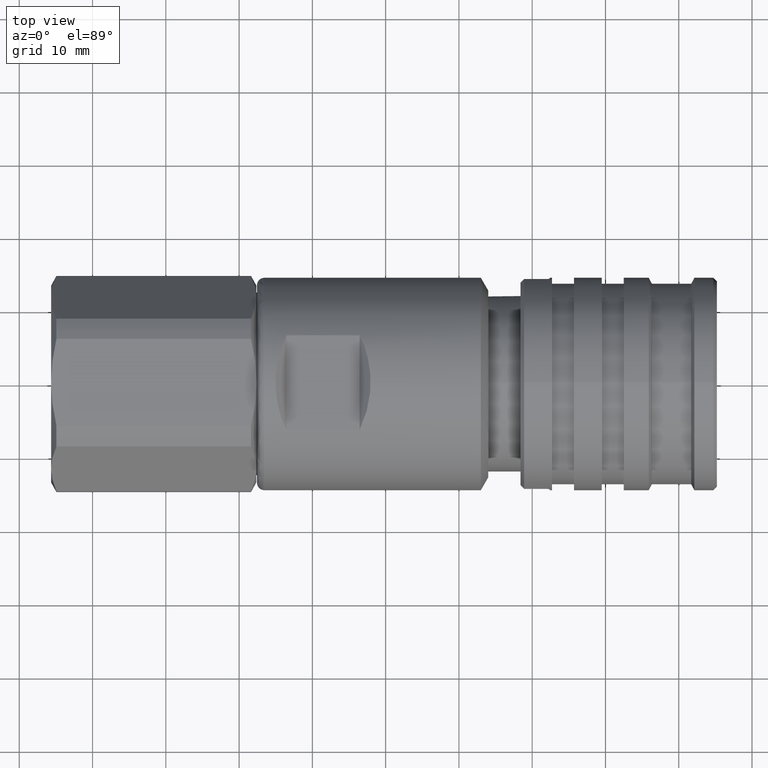
[diagram: clean part render]
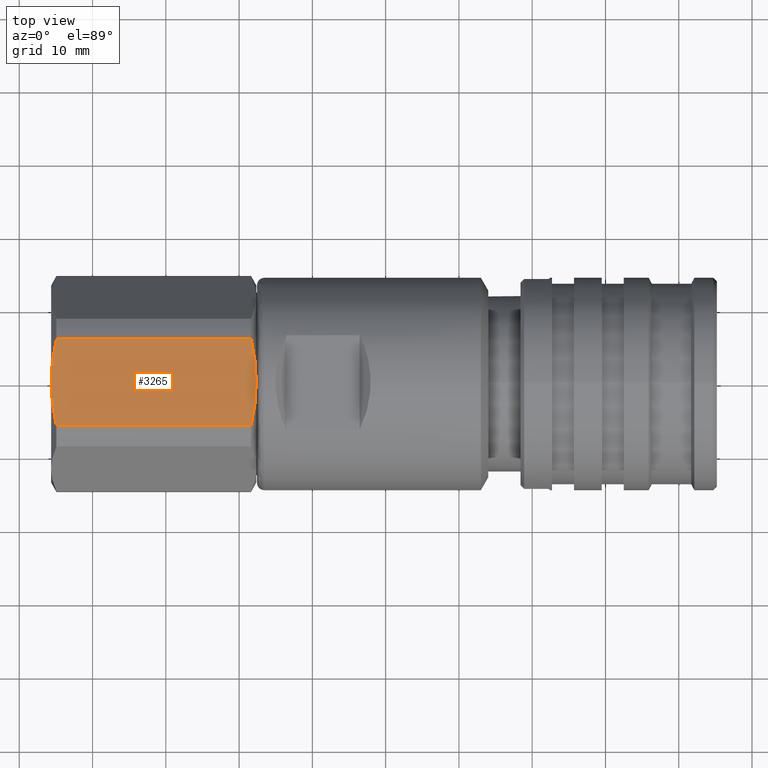
[diagram: same view with one face highlighted and labeled with its STEP entity id]
A machine part, top view. The second image highlights one B-rep face of the part: STEP entity #3265.
In plain terms, the highlighted planar face has unit normal (0, -0, 1).
Its self-contained STEP definition (entity closure, byte-faithful):
#185 = VERTEX_POINT ( 'NONE', #601 ) ;
#188 = VERTEX_POINT ( 'NONE', #598 ) ;
#209 = VERTEX_POINT ( 'NONE', #572 ) ;
#215 = VERTEX_POINT ( 'NONE', #565 ) ;
#216 = VERTEX_POINT ( 'NONE', #585 ) ;
#217 = VERTEX_POINT ( 'NONE', #355 ) ;
#355 = CARTESIAN_POINT ( 'NONE',  ( -45.64999999999999900, 1.061731601723357100E-014, 13.50000000000000900 ) ) ;
#565 = CARTESIAN_POINT ( 'NONE',  ( -44.92831216351299200, -5.942432162002345900, 13.50000000000000900 ) ) ;
#572 = CARTESIAN_POINT ( 'NONE',  ( -17.65000000000000200, 1.061731601723357100E-014, 13.50000000000000900 ) ) ;
#585 = CARTESIAN_POINT ( 'NONE',  ( -44.92831216351299200, 5.942432162002362800, 13.50000000000000900 ) ) ;
#598 = CARTESIAN_POINT ( 'NONE',  ( -18.37168783648702300, 5.942432162002364600, 13.50000000000001200 ) ) ;
#601 = CARTESIAN_POINT ( 'NONE',  ( -18.37168783648702300, -5.942432162002350400, 13.50000000000000700 ) ) ;
#1394 = LINE ( 'NONE', #2111, #1397 ) ;
#1397 = VECTOR ( 'NONE', #2112, 1000.000000000000000 ) ;
#1398 = LINE ( 'NONE', #2131, #1399 ) ;
#1399 = VECTOR ( 'NONE', #2133, 1000.000000000000000 ) ;
#1552 = FACE_OUTER_BOUND ( 'NONE', #2459, .T. ) ;
#1637 = AXIS2_PLACEMENT_3D ( 'NONE', #1829, #1832, #1831 ) ;
#1809 = PLANE ( 'NONE',  #1637 ) ;
#1829 = CARTESIAN_POINT ( 'NONE',  ( -45.64999999999999900, 7.794228634059951600, 13.50000000000000900 ) ) ;
#1831 = DIRECTION ( 'NONE',  ( 0.0000000000000000000, -1.000000000000000000, -1.112825628694192400E-016 ) ) ;
#1832 = DIRECTION ( 'NONE',  ( 0.0000000000000000000, -1.112825628694192400E-016, 1.000000000000000000 ) ) ;
#1984 = CARTESIAN_POINT ( 'NONE',  ( -17.66599632193961300, 0.9983600139321555700, 13.50000000000000900 ) ) ;
#1985 = CARTESIAN_POINT ( 'NONE',  ( -17.64999999999999900, 0.4985924432569585600, 13.50000000000000700 ) ) ;
#1986 = CARTESIAN_POINT ( 'NONE',  ( -18.14664931183445500, 4.974944830375471300, 13.50000000000001200 ) ) ;
#1987 = CARTESIAN_POINT ( 'NONE',  ( -18.37168783648702300, 5.942432162002364600, 13.50000000000001200 ) ) ;
#2005 = CARTESIAN_POINT ( 'NONE',  ( -18.37168783648702300, -5.942432162002350400, 13.50000000000000700 ) ) ;
#2006 = CARTESIAN_POINT ( 'NONE',  ( -18.14352724311968100, -4.961522408882674800, 13.50000000000001200 ) ) ;
#2009 = CARTESIAN_POINT ( 'NONE',  ( -17.65000000000000200, 1.061731601723357100E-014, 13.50000000000000900 ) ) ;
#2010 = CARTESIAN_POINT ( 'NONE',  ( -17.64999999999999900, -0.9992646526195152500, 13.50000000000000900 ) ) ;
#2011 = CARTESIAN_POINT ( 'NONE',  ( -17.71474302608774600, -1.993773130326870200, 13.50000000000000500 ) ) ;
#2012 = CARTESIAN_POINT ( 'NONE',  ( -17.96151489148240500, -3.974173994154658100, 13.50000000000001100 ) ) ;
#2084 = CARTESIAN_POINT ( 'NONE',  ( -17.77790028223407500, 2.503238126661830900, 13.50000000000001100 ) ) ;
#2094 = CARTESIAN_POINT ( 'NONE',  ( -17.72984401261957600, 2.000235301914161200, 13.50000000000000900 ) ) ;
#2097 = CARTESIAN_POINT ( 'NONE',  ( -45.57015598738042400, 2.000235301914154100, 13.50000000000000700 ) ) ;
#2098 = CARTESIAN_POINT ( 'NONE',  ( -45.64999999999999100, 0.4985924432569539000, 13.50000000000000500 ) ) ;
#2099 = CARTESIAN_POINT ( 'NONE',  ( -45.33514275053471500, 3.995636029179351100, 13.50000000000000700 ) ) ;
#2100 = CARTESIAN_POINT ( 'NONE',  ( -45.15335068816556700, 4.974944830375464200, 13.50000000000001200 ) ) ;
#2106 = CARTESIAN_POINT ( 'NONE',  ( -45.52209971776591900, 2.503238126661820700, 13.50000000000000700 ) ) ;
#2107 = CARTESIAN_POINT ( 'NONE',  ( -17.65000000000000200, 1.061731601723357100E-014, 13.50000000000000900 ) ) ;
#2108 = CARTESIAN_POINT ( 'NONE',  ( -17.96485724946529000, 3.995636029179358200, 13.50000000000001200 ) ) ;
#2111 = CARTESIAN_POINT ( 'NONE',  ( -17.65000000000000200, -5.942432162002345900, 13.50000000000000900 ) ) ;
#2112 = DIRECTION ( 'NONE',  ( -1.000000000000000000, 0.0000000000000000000, 0.0000000000000000000 ) ) ;
#2113 = CARTESIAN_POINT ( 'NONE',  ( -44.92831216351299200, -5.942432162002345900, 13.50000000000000900 ) ) ;
#2114 = CARTESIAN_POINT ( 'NONE',  ( -45.15647275688032600, -4.961522408882673000, 13.50000000000000900 ) ) ;
#2115 = CARTESIAN_POINT ( 'NONE',  ( -45.64999999999999900, -0.9992646526195184700, 13.50000000000000900 ) ) ;
#2116 = CARTESIAN_POINT ( 'NONE',  ( -45.64999999999999900, 1.061731601723357100E-014, 13.50000000000000900 ) ) ;
#2124 = CARTESIAN_POINT ( 'NONE',  ( -45.33848510851759500, -3.974173994154659000, 13.50000000000000700 ) ) ;
#2125 = CARTESIAN_POINT ( 'NONE',  ( -45.58525697391225900, -1.993773130326873800, 13.50000000000000900 ) ) ;
#2131 = CARTESIAN_POINT ( 'NONE',  ( -17.65000000000000200, 5.942432162002362800, 13.50000000000000900 ) ) ;
#2133 = DIRECTION ( 'NONE',  ( 1.000000000000000000, -0.0000000000000000000, -0.0000000000000000000 ) ) ;
#2135 = CARTESIAN_POINT ( 'NONE',  ( -44.92831216351299200, 5.942432162002362800, 13.50000000000000900 ) ) ;
#2179 = CARTESIAN_POINT ( 'NONE',  ( -45.63400367806038800, 0.9983600139321487900, 13.50000000000000700 ) ) ;
#2418 = ORIENTED_EDGE ( 'NONE', *, *, #2945, .T. ) ;
#2423 = ORIENTED_EDGE ( 'NONE', *, *, #2951, .T. ) ;
#2459 = EDGE_LOOP ( 'NONE', ( #2563, #2592, #2423, #2418, #2466, #2648 ) ) ;
#2466 = ORIENTED_EDGE ( 'NONE', *, *, #2976, .F. ) ;
#2563 = ORIENTED_EDGE ( 'NONE', *, *, #2974, .T. ) ;
#2592 = ORIENTED_EDGE ( 'NONE', *, *, #2975, .F. ) ;
#2648 = ORIENTED_EDGE ( 'NONE', *, *, #2977, .T. ) ;
#2945 = EDGE_CURVE ( 'NONE', #209, #188, #3770, .T. ) ;
#2951 = EDGE_CURVE ( 'NONE', #185, #209, #3802, .T. ) ;
#2974 = EDGE_CURVE ( 'NONE', #217, #215, #3793, .T. ) ;
#2975 = EDGE_CURVE ( 'NONE', #185, #215, #1394, .T. ) ;
#2976 = EDGE_CURVE ( 'NONE', #216, #188, #1398, .T. ) ;
#2977 = EDGE_CURVE ( 'NONE', #216, #217, #3791, .T. ) ;
#3265 = ADVANCED_FACE ( 'NONE', ( #1552 ), #1809, .T. ) ;
#3578 = CARTESIAN_POINT ( 'NONE',  ( -45.64999999999999900, 1.061731601723357100E-014, 13.50000000000000900 ) ) ;
#3770 = B_SPLINE_CURVE_WITH_KNOTS ( 'NONE', 3,
 ( #2107, #1985, #1984, #2094, #2084, #2108, #1986, #1987 ),
 .UNSPECIFIED., .F., .F.,
 ( 4, 2, 2, 4 ),
 ( 0.02171570483444236500, 0.02320824184220472700, 0.02470077884996708900, 0.02768585286549181400 ),
 .UNSPECIFIED. ) ;
#3791 = B_SPLINE_CURVE_WITH_KNOTS ( 'NONE', 3,
 ( #2135, #2100, #2099, #2106, #2097, #2179, #2098, #3578 ),
 .UNSPECIFIED., .F., .F.,
 ( 4, 2, 2, 4 ),
 ( 0.007707432271213172800, 0.01068519151826853600, 0.01217407114179621500, 0.01366295076532389500 ),
 .UNSPECIFIED. ) ;
#3793 = B_SPLINE_CURVE_WITH_KNOTS ( 'NONE', 3,
 ( #2116, #2115, #2125, #2124, #2114, #2113 ),
 .UNSPECIFIED., .F., .F.,
 ( 4, 2, 4 ),
 ( 0.01366295076532389500, 0.01664692053846777300, 0.01963089031161165100 ),
 .UNSPECIFIED. ) ;
#3802 = B_SPLINE_CURVE_WITH_KNOTS ( 'NONE', 3,
 ( #2005, #2006, #2012, #2011, #2010, #2009 ),
 .UNSPECIFIED., .F., .F.,
 ( 4, 2, 4 ),
 ( 0.01573310523930632200, 0.01872440503687434300, 0.02171570483444236500 ),
 .UNSPECIFIED. ) ;